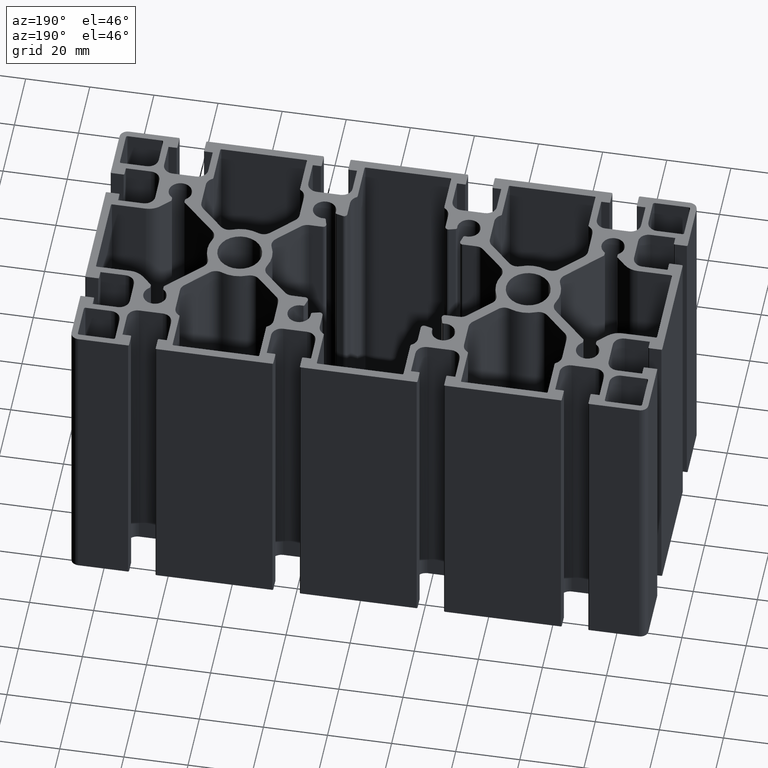
[diagram: clean part render]
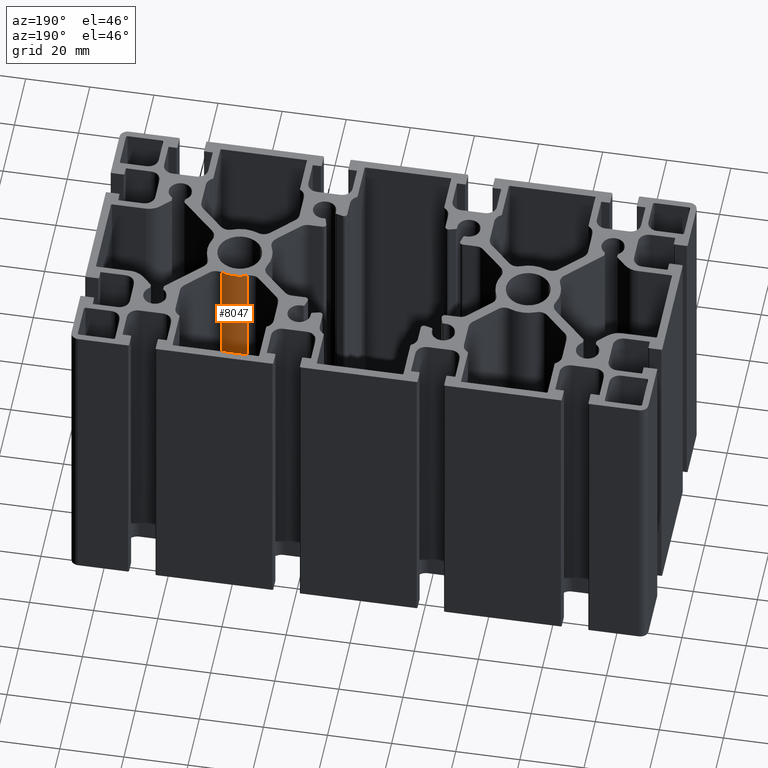
[diagram: same view with one face highlighted and labeled with its STEP entity id]
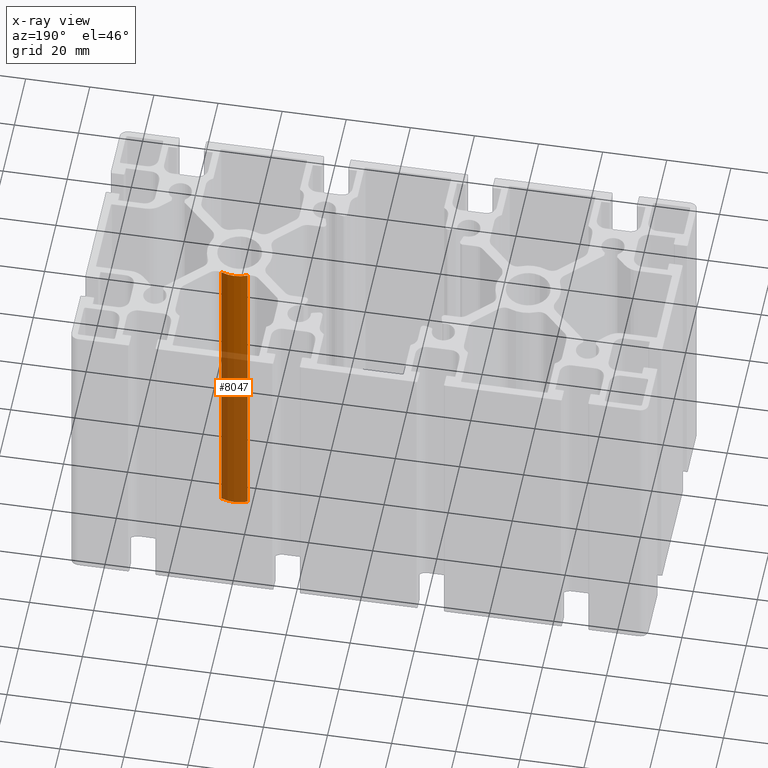
[diagram: x-ray of the same camera — body ghosted, the highlighted face saturated]
A machine part, auxiliary view. The second image highlights one B-rep face of the part: STEP entity #8047.
The next image is the same camera in x-ray: the body ghosted, the highlighted face saturated — about 66% of this face is hidden behind the body in this view.
In plain terms, the highlighted cylindrical surface (edge-blend (fillet) strip) has radius 10.1 mm, axis along (0, 0, 1).
Its self-contained STEP definition (entity closure, byte-faithful):
#343=CIRCLE('',#8758,10.1);
#344=CIRCLE('',#8759,10.1);
#621=CYLINDRICAL_SURFACE('',#8757,10.1);
#973=FACE_OUTER_BOUND('',#1383,.T.);
#1383=EDGE_LOOP('',(#6281,#6282,#6283,#6284));
#2103=LINE('',#13231,#2891);
#2104=LINE('',#13237,#2892);
#2891=VECTOR('',#10755,100.);
#2892=VECTOR('',#10762,100.);
#3705=VERTEX_POINT('',#13228);
#3706=VERTEX_POINT('',#13230);
#3707=VERTEX_POINT('',#13234);
#3708=VERTEX_POINT('',#13236);
#4790=EDGE_CURVE('',#3706,#3705,#2103,.T.);
#4792=EDGE_CURVE('',#3707,#3705,#343,.T.);
#4793=EDGE_CURVE('',#3708,#3707,#2104,.T.);
#4794=EDGE_CURVE('',#3706,#3708,#344,.T.);
#6281=ORIENTED_EDGE('',*,*,#4792,.F.);
#6282=ORIENTED_EDGE('',*,*,#4793,.F.);
#6283=ORIENTED_EDGE('',*,*,#4794,.F.);
#6284=ORIENTED_EDGE('',*,*,#4790,.T.);
#8047=ADVANCED_FACE('',(#973),#621,.T.);
#8757=AXIS2_PLACEMENT_3D('',#13233,#10758,#10759);
#8758=AXIS2_PLACEMENT_3D('',#13235,#10760,#10761);
#8759=AXIS2_PLACEMENT_3D('',#13238,#10763,#10764);
#10755=DIRECTION('',(0.,0.,1.));
#10758=DIRECTION('center_axis',(0.,0.,1.));
#10759=DIRECTION('ref_axis',(-0.404253930446774,-0.914646795062627,0.));
#10760=DIRECTION('center_axis',(0.,0.,1.));
#10761=DIRECTION('ref_axis',(-0.404253930446774,-0.914646795062627,0.));
#10762=DIRECTION('',(0.,0.,1.));
#10763=DIRECTION('center_axis',(0.,0.,-1.));
#10764=DIRECTION('ref_axis',(-0.404253930446774,-0.914646795062627,0.));
#13228=CARTESIAN_POINT('',(40.9170353024876,9.23793263013254,100.));
#13230=CARTESIAN_POINT('',(40.9170353024876,9.23793263013254,0.));
#13231=CARTESIAN_POINT('',(40.9170353024876,9.23793263013254,0.));
#13233=CARTESIAN_POINT('Origin',(45.,-1.4210854715202E-14,0.));
#13234=CARTESIAN_POINT('',(49.0829646975124,9.23793263013253,100.));
#13235=CARTESIAN_POINT('Origin',(45.,-1.4210854715202E-14,100.));
#13236=CARTESIAN_POINT('',(49.0829646975124,9.23793263013253,0.));
#13237=CARTESIAN_POINT('',(49.0829646975124,9.23793263013253,0.));
#13238=CARTESIAN_POINT('Origin',(45.,-1.4210854715202E-14,0.));